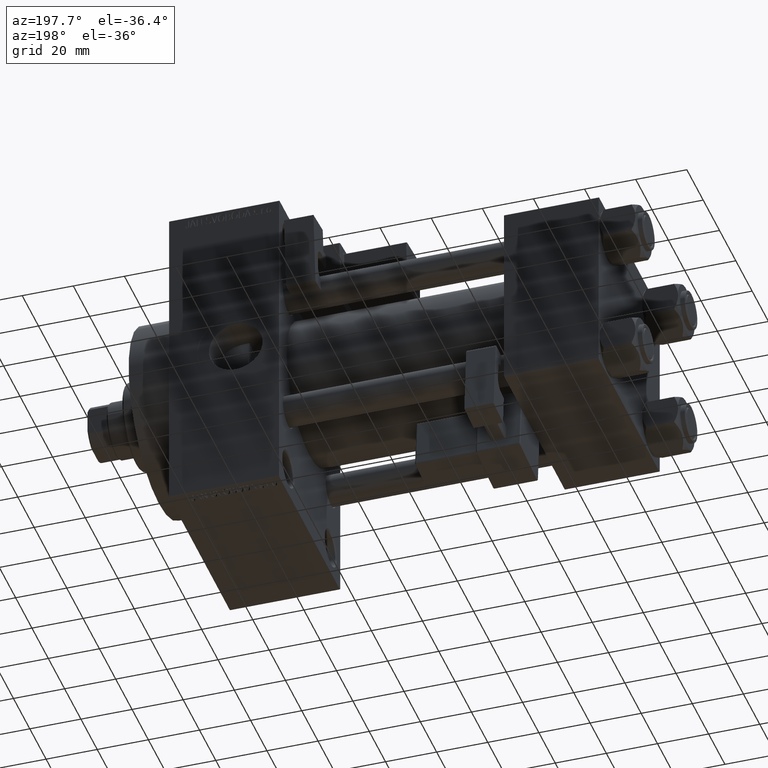
[diagram: clean part render]
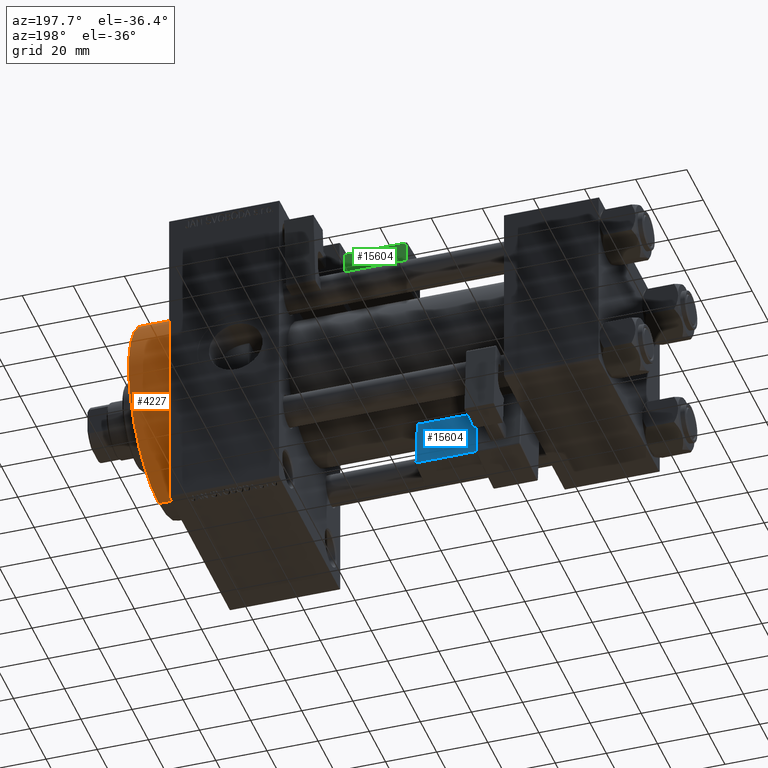
[diagram: same view with three faces highlighted in distinct colors, each labeled with its STEP entity id]
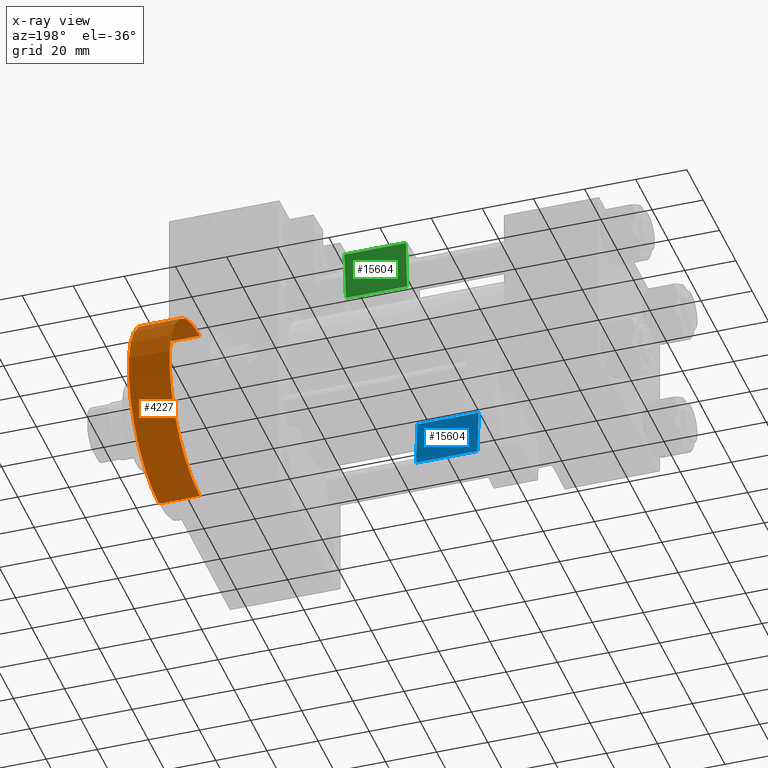
[diagram: x-ray of the same camera — body ghosted, the three highlighted faces saturated]
A machine part, auxiliary view with three faces highlighted in distinct colors.
The next image is the same camera in x-ray (body ghosted, the three faces saturated) — at least one of them is partly hidden behind the body in this view.
Their STEP definitions:

[orange] entity #4227 — the highlighted cylindrical surface (partial cylindrical patch) has radius 37 mm, axis along (-1, -0, -0).
#453 = DIRECTION ( 'NONE',  ( 0.000000000000000000, 0.000000000000000000, -1.000000000000000000 ) ) ;
#1680 = EDGE_LOOP ( 'NONE', ( #27416, #12102, #1877, #28377 ) ) ;
#1877 = ORIENTED_EDGE ( 'NONE', *, *, #37041, .T. ) ;
#3360 = DIRECTION ( 'NONE',  ( -1.000000000000000000, -0.000000000000000000, -0.000000000000000000 ) ) ;
#4227 = ADVANCED_FACE ( 'NONE', ( #25398 ), #17434, .T. ) ;
#5292 = VERTEX_POINT ( 'NONE', #11747 ) ;
#5605 = DIRECTION ( 'NONE',  ( 0.000000000000000000, 0.000000000000000000, 1.000000000000000000 ) ) ;
#7175 = DIRECTION ( 'NONE',  ( 1.000000000000000000, 0.000000000000000000, 0.000000000000000000 ) ) ;
#7215 = CARTESIAN_POINT ( 'NONE',  ( 184.0000000000000000, 0.000000000000000000, 37.00000000000000000 ) ) ;
#9711 = DIRECTION ( 'NONE',  ( -1.000000000000000000, -0.000000000000000000, -0.000000000000000000 ) ) ;
#9969 = EDGE_CURVE ( 'NONE', #35993, #5292, #22385, .T. ) ;
#10479 = EDGE_CURVE ( 'NONE', #16809, #25400, #47084, .T. ) ;
#10814 = CARTESIAN_POINT ( 'NONE',  ( 184.0000000000000000, 4.531193156845206793E-15, -37.00000000000000000 ) ) ;
#11747 = CARTESIAN_POINT ( 'NONE',  ( 167.9999999999999716, 4.531193156845206793E-15, -37.00000000000000000 ) ) ;
#12102 = ORIENTED_EDGE ( 'NONE', *, *, #9969, .T. ) ;
#14631 = AXIS2_PLACEMENT_3D ( 'NONE', #40594, #9711, #5605 ) ;
#15718 = VECTOR ( 'NONE', #3360, 1000.000000000000000 ) ;
#16489 = CARTESIAN_POINT ( 'NONE',  ( 184.0000000000000000, 4.531193156845206793E-15, -37.00000000000000000 ) ) ;
#16809 = VERTEX_POINT ( 'NONE', #26353 ) ;
#17434 = CYLINDRICAL_SURFACE ( 'NONE', #14631, 37.00000000000000000 ) ;
#21776 = CIRCLE ( 'NONE', #40698, 37.00000000000000000 ) ;
#22385 = LINE ( 'NONE', #10814, #45270 ) ;
#25398 = FACE_OUTER_BOUND ( 'NONE', #1680, .T. ) ;
#25400 = VERTEX_POINT ( 'NONE', #32772 ) ;
#26353 = CARTESIAN_POINT ( 'NONE',  ( 184.0000000000000000, 0.000000000000000000, 37.00000000000000000 ) ) ;
#27416 = ORIENTED_EDGE ( 'NONE', *, *, #31845, .F. ) ;
#28333 = AXIS2_PLACEMENT_3D ( 'NONE', #47006, #35689, #453 ) ;
#28377 = ORIENTED_EDGE ( 'NONE', *, *, #10479, .F. ) ;
#31845 = EDGE_CURVE ( 'NONE', #35993, #16809, #49649, .T. ) ;
#32772 = CARTESIAN_POINT ( 'NONE',  ( 167.9999999999999716, 0.000000000000000000, 37.00000000000000000 ) ) ;
#34959 = DIRECTION ( 'NONE',  ( 0.000000000000000000, 0.000000000000000000, -1.000000000000000000 ) ) ;
#35689 = DIRECTION ( 'NONE',  ( 1.000000000000000000, 0.000000000000000000, 0.000000000000000000 ) ) ;
#35993 = VERTEX_POINT ( 'NONE', #16489 ) ;
#37041 = EDGE_CURVE ( 'NONE', #5292, #25400, #21776, .T. ) ;
#38048 = CARTESIAN_POINT ( 'NONE',  ( 167.9999999999999716, 0.000000000000000000, 0.000000000000000000 ) ) ;
#38335 = DIRECTION ( 'NONE',  ( -1.000000000000000000, -0.000000000000000000, -0.000000000000000000 ) ) ;
#40594 = CARTESIAN_POINT ( 'NONE',  ( 184.0000000000000000, 0.000000000000000000, 0.000000000000000000 ) ) ;
#40698 = AXIS2_PLACEMENT_3D ( 'NONE', #38048, #7175, #34959 ) ;
#45270 = VECTOR ( 'NONE', #38335, 1000.000000000000000 ) ;
#47006 = CARTESIAN_POINT ( 'NONE',  ( 184.0000000000000000, 0.000000000000000000, 0.000000000000000000 ) ) ;
#47084 = LINE ( 'NONE', #7215, #15718 ) ;
#49649 = CIRCLE ( 'NONE', #28333, 37.00000000000000000 ) ;

[blue] entity #15604 — the highlighted planar face has unit normal (0, -0.9963, -0.086).
#2360 = LINE ( 'NONE', #32739, #12291 ) ;
#5207 = CARTESIAN_POINT ( 'NONE',  ( 33.75000000000000000, -21.24999999999999645, 21.50000000000000711 ) ) ;
#6181 = FACE_OUTER_BOUND ( 'NONE', #17788, .T. ) ;
#6216 = LINE ( 'NONE', #5207, #30844 ) ;
#6962 = VECTOR ( 'NONE', #22003, 1000.000000000000000 ) ;
#9214 = AXIS2_PLACEMENT_3D ( 'NONE', #48894, #18004, #37547 ) ;
#9321 = DIRECTION ( 'NONE',  ( -1.334402673828313339E-16, 0.000000000000000000, 1.000000000000000000 ) ) ;
#10134 = ORIENTED_EDGE ( 'NONE', *, *, #50225, .T. ) ;
#12291 = VECTOR ( 'NONE', #9321, 1000.000000000000000 ) ;
#13432 = CARTESIAN_POINT ( 'NONE',  ( 9.250000000000005329, -21.24999999999999645, 2.500000000000005773 ) ) ;
#15604 = ADVANCED_FACE ( 'NONE', ( #6181 ), #33205, .F. ) ;
#17788 = EDGE_LOOP ( 'NONE', ( #10134, #31505, #44714, #24662 ) ) ;
#18004 = DIRECTION ( 'NONE',  ( 0.000000000000000000, -1.000000000000000000, 0.000000000000000000 ) ) ;
#20709 = EDGE_CURVE ( 'NONE', #43507, #35981, #37694, .T. ) ;
#22003 = DIRECTION ( 'NONE',  ( 1.734723475976807587E-16, -0.000000000000000000, -1.000000000000000000 ) ) ;
#22905 = CARTESIAN_POINT ( 'NONE',  ( 33.75000000000000000, -21.24999999999999645, 2.500000000000009326 ) ) ;
#24662 = ORIENTED_EDGE ( 'NONE', *, *, #20709, .T. ) ;
#26268 = VECTOR ( 'NONE', #38601, 1000.000000000000000 ) ;
#30844 = VECTOR ( 'NONE', #44818, 1000.000000000000000 ) ;
#31405 = CARTESIAN_POINT ( 'NONE',  ( 33.25000000000000000, -21.24999999999999645, 2.500000000000009326 ) ) ;
#31505 = ORIENTED_EDGE ( 'NONE', *, *, #50039, .T. ) ;
#32739 = CARTESIAN_POINT ( 'NONE',  ( 9.250000000000001776, -21.24999999999999645, 22.00000000000000711 ) ) ;
#33205 = PLANE ( 'NONE',  #9214 ) ;
#33988 = EDGE_CURVE ( 'NONE', #39275, #43507, #6216, .T. ) ;
#35221 = VERTEX_POINT ( 'NONE', #13432 ) ;
#35981 = VERTEX_POINT ( 'NONE', #31405 ) ;
#37547 = DIRECTION ( 'NONE',  ( 0.000000000000000000, -0.000000000000000000, -1.000000000000000000 ) ) ;
#37694 = LINE ( 'NONE', #37947, #6962 ) ;
#37947 = CARTESIAN_POINT ( 'NONE',  ( 33.25000000000000000, -21.24999999999999645, 2.000000000000010214 ) ) ;
#38601 = DIRECTION ( 'NONE',  ( -1.000000000000000000, 0.000000000000000000, -1.334402673828313339E-16 ) ) ;
#39275 = VERTEX_POINT ( 'NONE', #47509 ) ;
#40879 = CARTESIAN_POINT ( 'NONE',  ( 33.25000000000000000, -21.24999999999999645, 21.50000000000000711 ) ) ;
#42469 = LINE ( 'NONE', #22905, #26268 ) ;
#43507 = VERTEX_POINT ( 'NONE', #40879 ) ;
#44714 = ORIENTED_EDGE ( 'NONE', *, *, #33988, .T. ) ;
#44818 = DIRECTION ( 'NONE',  ( 1.000000000000000000, -0.000000000000000000, 1.334402673828313339E-16 ) ) ;
#47509 = CARTESIAN_POINT ( 'NONE',  ( 9.250000000000001776, -21.24999999999999645, 21.50000000000000355 ) ) ;
#48894 = CARTESIAN_POINT ( 'NONE',  ( 33.75000000000000000, -21.24999999999999645, 22.00000000000001066 ) ) ;
#50039 = EDGE_CURVE ( 'NONE', #35221, #39275, #2360, .T. ) ;
#50225 = EDGE_CURVE ( 'NONE', #35981, #35221, #42469, .T. ) ;

[green] entity #15604 — the highlighted planar face has unit normal (0, -0.9963, 0.086).
#2360 = LINE ( 'NONE', #32739, #12291 ) ;
#5207 = CARTESIAN_POINT ( 'NONE',  ( 33.75000000000000000, -21.24999999999999645, 21.50000000000000711 ) ) ;
#6181 = FACE_OUTER_BOUND ( 'NONE', #17788, .T. ) ;
#6216 = LINE ( 'NONE', #5207, #30844 ) ;
#6962 = VECTOR ( 'NONE', #22003, 1000.000000000000000 ) ;
#9214 = AXIS2_PLACEMENT_3D ( 'NONE', #48894, #18004, #37547 ) ;
#9321 = DIRECTION ( 'NONE',  ( -1.334402673828313339E-16, 0.000000000000000000, 1.000000000000000000 ) ) ;
#10134 = ORIENTED_EDGE ( 'NONE', *, *, #50225, .T. ) ;
#12291 = VECTOR ( 'NONE', #9321, 1000.000000000000000 ) ;
#13432 = CARTESIAN_POINT ( 'NONE',  ( 9.250000000000005329, -21.24999999999999645, 2.500000000000005773 ) ) ;
#15604 = ADVANCED_FACE ( 'NONE', ( #6181 ), #33205, .F. ) ;
#17788 = EDGE_LOOP ( 'NONE', ( #10134, #31505, #44714, #24662 ) ) ;
#18004 = DIRECTION ( 'NONE',  ( 0.000000000000000000, -1.000000000000000000, 0.000000000000000000 ) ) ;
#20709 = EDGE_CURVE ( 'NONE', #43507, #35981, #37694, .T. ) ;
#22003 = DIRECTION ( 'NONE',  ( 1.734723475976807587E-16, -0.000000000000000000, -1.000000000000000000 ) ) ;
#22905 = CARTESIAN_POINT ( 'NONE',  ( 33.75000000000000000, -21.24999999999999645, 2.500000000000009326 ) ) ;
#24662 = ORIENTED_EDGE ( 'NONE', *, *, #20709, .T. ) ;
#26268 = VECTOR ( 'NONE', #38601, 1000.000000000000000 ) ;
#30844 = VECTOR ( 'NONE', #44818, 1000.000000000000000 ) ;
#31405 = CARTESIAN_POINT ( 'NONE',  ( 33.25000000000000000, -21.24999999999999645, 2.500000000000009326 ) ) ;
#31505 = ORIENTED_EDGE ( 'NONE', *, *, #50039, .T. ) ;
#32739 = CARTESIAN_POINT ( 'NONE',  ( 9.250000000000001776, -21.24999999999999645, 22.00000000000000711 ) ) ;
#33205 = PLANE ( 'NONE',  #9214 ) ;
#33988 = EDGE_CURVE ( 'NONE', #39275, #43507, #6216, .T. ) ;
#35221 = VERTEX_POINT ( 'NONE', #13432 ) ;
#35981 = VERTEX_POINT ( 'NONE', #31405 ) ;
#37547 = DIRECTION ( 'NONE',  ( 0.000000000000000000, -0.000000000000000000, -1.000000000000000000 ) ) ;
#37694 = LINE ( 'NONE', #37947, #6962 ) ;
#37947 = CARTESIAN_POINT ( 'NONE',  ( 33.25000000000000000, -21.24999999999999645, 2.000000000000010214 ) ) ;
#38601 = DIRECTION ( 'NONE',  ( -1.000000000000000000, 0.000000000000000000, -1.334402673828313339E-16 ) ) ;
#39275 = VERTEX_POINT ( 'NONE', #47509 ) ;
#40879 = CARTESIAN_POINT ( 'NONE',  ( 33.25000000000000000, -21.24999999999999645, 21.50000000000000711 ) ) ;
#42469 = LINE ( 'NONE', #22905, #26268 ) ;
#43507 = VERTEX_POINT ( 'NONE', #40879 ) ;
#44714 = ORIENTED_EDGE ( 'NONE', *, *, #33988, .T. ) ;
#44818 = DIRECTION ( 'NONE',  ( 1.000000000000000000, -0.000000000000000000, 1.334402673828313339E-16 ) ) ;
#47509 = CARTESIAN_POINT ( 'NONE',  ( 9.250000000000001776, -21.24999999999999645, 21.50000000000000355 ) ) ;
#48894 = CARTESIAN_POINT ( 'NONE',  ( 33.75000000000000000, -21.24999999999999645, 22.00000000000001066 ) ) ;
#50039 = EDGE_CURVE ( 'NONE', #35221, #39275, #2360, .T. ) ;
#50225 = EDGE_CURVE ( 'NONE', #35981, #35221, #42469, .T. ) ;